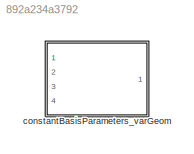
MODEL slx_892a234a3792
KIND library
CONFIG AbsTol = auto
CONFIG EnableMultiTasking = off
CONFIG FixedStep = auto
CONFIG MaxStep = auto
CONFIG MinStep = auto
CONFIG RelTol = 1e-3
CONFIG SampleTimeConstraint = Unconstrained
CONFIG Solver = VariableStepAuto
CONFIG SolverName = VariableStepAuto
CONFIG StartTime = 0.0
CONFIG StopTime = 10.0
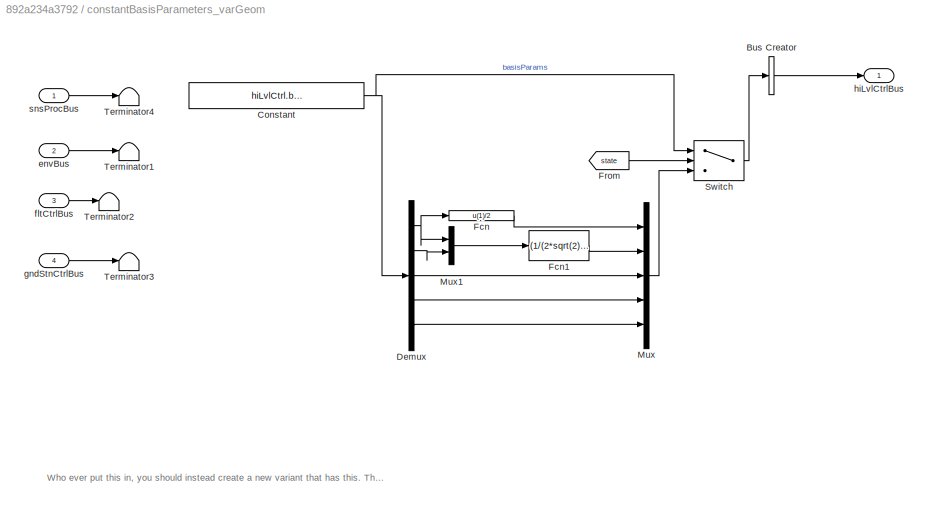
BLOCK [SubSystem] constantBasisParameters_varGeom
  InitFcn = initializeBussesFromBlock(gcb)
  LoadFcn = initializeBussesFromBlock(gcb)
  Ports = [4, 1]
  RequestExecContextInheritance = off
  StartFcn = initializeBussesFromBlock(gcb)
  VariantControl = strcmpi(HILVLCONTROLLER,'constantBasisParameters')
BLOCK [BusCreator] constantBasisParameters_varGeom/Bus Creator
  DisplayOption = bar
  InheritFromInputs = on
  Inputs = 1
  OutDataTypeStr = Bus: hiLvlCtrlBus
  Ports = [1, 1]
BLOCK [Constant] constantBasisParameters_varGeom/Constant
  Value = hiLvlCtrl.basisParams.Value
BLOCK [Demux] constantBasisParameters_varGeom/Demux
  Outputs = 5
  Ports = [1, 5]
BLOCK [Fcn] constantBasisParameters_varGeom/Fcn
  Expr = u(1)/2
BLOCK [Fcn] constantBasisParameters_varGeom/Fcn1
  Expr = (1/(2*sqrt(2)))*sqrt(-u(1)^2+sqrt((u(2)^2*(4+u(2)^2)*u(1)^4))/(u(2)^2))
BLOCK [From] constantBasisParameters_varGeom/From
  GotoTag = state
BLOCK [Mux] constantBasisParameters_varGeom/Mux
  DisplayOption = bar
  Inputs = 5
  Ports = [5, 1]
BLOCK [Mux] constantBasisParameters_varGeom/Mux1
  DisplayOption = bar
  Inputs = 2
  Ports = [2, 1]
BLOCK [Switch] constantBasisParameters_varGeom/Switch
  Criteria = u2 > Threshold
  InputSameDT = off
  SaturateOnIntegerOverflow = off
  Threshold = 3
BLOCK [Terminator] constantBasisParameters_varGeom/Terminator1
BLOCK [Terminator] constantBasisParameters_varGeom/Terminator2
BLOCK [Terminator] constantBasisParameters_varGeom/Terminator3
BLOCK [Terminator] constantBasisParameters_varGeom/Terminator4
BLOCK [Inport] constantBasisParameters_varGeom/envBus
  OutDataTypeStr = Bus: envBus
  Port = 2
BLOCK [Inport] constantBasisParameters_varGeom/fltCtrlBus
  OutDataTypeStr = Bus: fltCtrlBus
  Port = 3
BLOCK [Inport] constantBasisParameters_varGeom/gndStnCtrlBus
  OutDataTypeStr = Bus: gndStnCtrlBus
  Port = 4
BLOCK [Outport] constantBasisParameters_varGeom/hiLvlCtrlBus
  OutDataTypeStr = Bus: hiLvlCtrlBus
  VectorParamsAs1DForOutWhenUnconnected = off
BLOCK [Inport] constantBasisParameters_varGeom/snsProcBus
  OutDataTypeStr = Bus: sensorsProcessingBus
ANNOTATION constantBasisParameters_varGeom: Who ever put this in, you should instead create a new variant that has this. The purpose of this block is to ouput constant basis parameters. JR
LINE constantBasisParameters_varGeom/Bus Creator:1 -> constantBasisParameters_varGeom/hiLvlCtrlBus:1
NET constantBasisParameters_varGeom/Constant:1 -> constantBasisParameters_varGeom/Demux:1, constantBasisParameters_varGeom/Switch:1
NET constantBasisParameters_varGeom/Demux:1 -> constantBasisParameters_varGeom/Fcn:1, constantBasisParameters_varGeom/Mux1:1
LINE constantBasisParameters_varGeom/Demux:2 -> constantBasisParameters_varGeom/Mux1:2
LINE constantBasisParameters_varGeom/Demux:3 -> constantBasisParameters_varGeom/Mux:3
LINE constantBasisParameters_varGeom/Demux:4 -> constantBasisParameters_varGeom/Mux:4
LINE constantBasisParameters_varGeom/Demux:5 -> constantBasisParameters_varGeom/Mux:5
LINE constantBasisParameters_varGeom/Fcn1:1 -> constantBasisParameters_varGeom/Mux:2
LINE constantBasisParameters_varGeom/Fcn:1 -> constantBasisParameters_varGeom/Mux:1
LINE constantBasisParameters_varGeom/From:1 -> constantBasisParameters_varGeom/Switch:2
LINE constantBasisParameters_varGeom/Mux1:1 -> constantBasisParameters_varGeom/Fcn1:1
LINE constantBasisParameters_varGeom/Mux:1 -> constantBasisParameters_varGeom/Switch:3
LINE constantBasisParameters_varGeom/Switch:1 -> constantBasisParameters_varGeom/Bus Creator:1
LINE constantBasisParameters_varGeom/envBus:1 -> constantBasisParameters_varGeom/Terminator1:1
LINE constantBasisParameters_varGeom/fltCtrlBus:1 -> constantBasisParameters_varGeom/Terminator2:1
LINE constantBasisParameters_varGeom/gndStnCtrlBus:1 -> constantBasisParameters_varGeom/Terminator3:1
LINE constantBasisParameters_varGeom/snsProcBus:1 -> constantBasisParameters_varGeom/Terminator4:1
note: NET lines group one-source signal fan-out (src -> all destinations, sorted); 1:1 wires keep LINE
